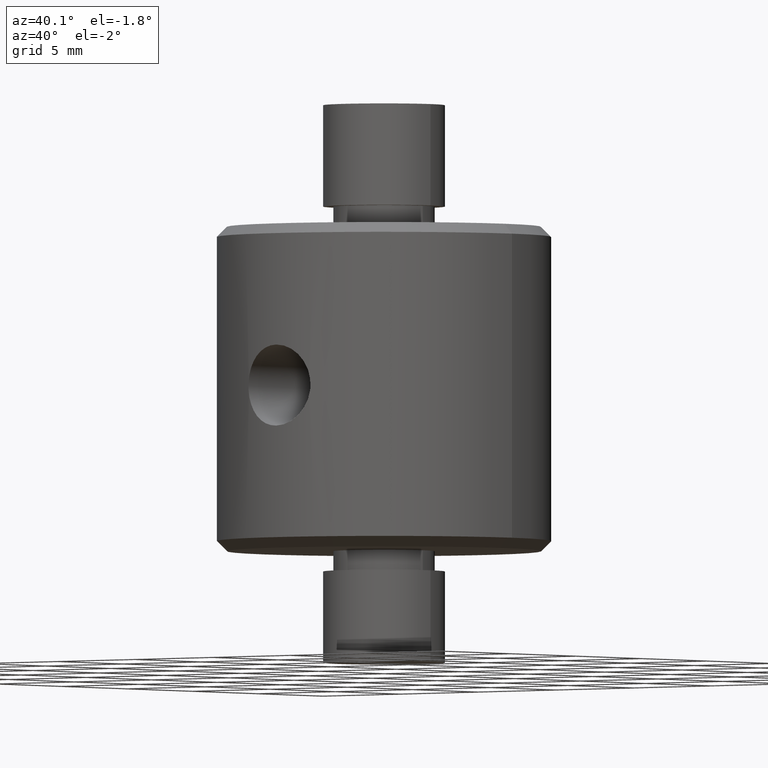
[diagram: clean part render]
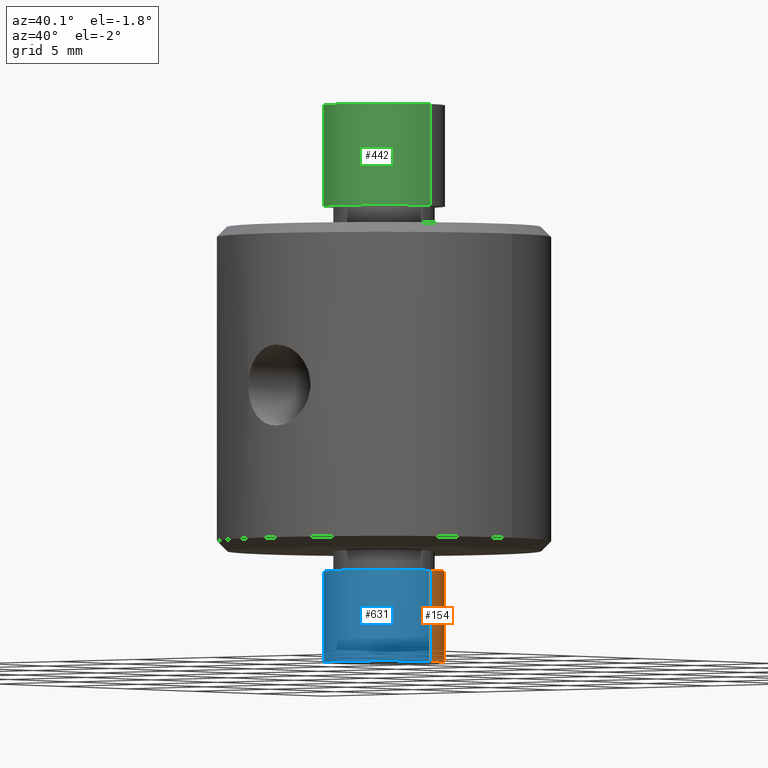
[diagram: same view with three faces highlighted in distinct colors, each labeled with its STEP entity id]
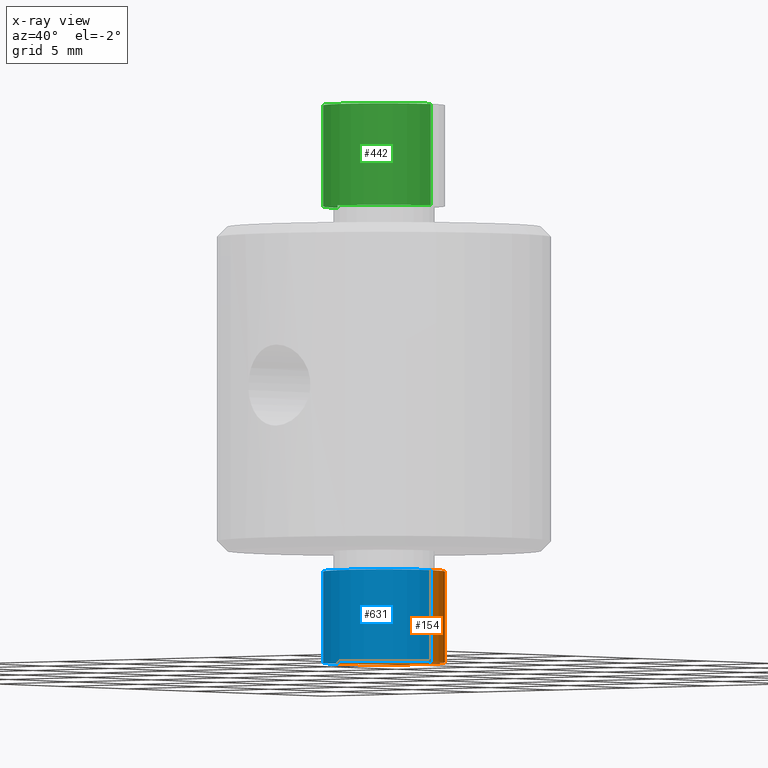
[diagram: x-ray of the same camera — body ghosted, the three highlighted faces saturated]
A machine part, auxiliary view with three faces highlighted in distinct colors.
The next image is the same camera in x-ray (body ghosted, the three faces saturated) — at least one of them is partly hidden behind the body in this view.
Their STEP definitions:

[orange] entity #154 — the highlighted cylindrical surface (partial cylindrical patch) has radius 3 mm, axis along (-0, -0, -1).
#9 = AXIS2_PLACEMENT_3D ( 'NONE', #415, #113, #177 ) ;
#40 = FACE_OUTER_BOUND ( 'NONE', #416, .T. ) ;
#65 = DIRECTION ( 'NONE',  ( -0.0000000000000000000, -0.0000000000000000000, -1.000000000000000000 ) ) ;
#69 = EDGE_CURVE ( 'NONE', #440, #360, #85, .T. ) ;
#71 = DIRECTION ( 'NONE',  ( -0.0000000000000000000, -0.0000000000000000000, -1.000000000000000000 ) ) ;
#85 = CIRCLE ( 'NONE', #9, 3.000000000000000400 ) ;
#87 = ORIENTED_EDGE ( 'NONE', *, *, #69, .F. ) ;
#113 = DIRECTION ( 'NONE',  ( -0.0000000000000000000, -0.0000000000000000000, 1.000000000000000000 ) ) ;
#118 = CARTESIAN_POINT ( 'NONE',  ( 3.000000000000000400, 3.673940397442060400E-016, -9.000000000000001800 ) ) ;
#121 = EDGE_CURVE ( 'NONE', #360, #195, #753, .T. ) ;
#154 = ADVANCED_FACE ( 'NONE', ( #40 ), #681, .T. ) ;
#177 = DIRECTION ( 'NONE',  ( -1.000000000000000000, 0.0000000000000000000, 0.0000000000000000000 ) ) ;
#186 = AXIS2_PLACEMENT_3D ( 'NONE', #492, #71, #610 ) ;
#193 = ORIENTED_EDGE ( 'NONE', *, *, #121, .F. ) ;
#195 = VERTEX_POINT ( 'NONE', #720 ) ;
#201 = DIRECTION ( 'NONE',  ( -0.0000000000000000000, -0.0000000000000000000, -1.000000000000000000 ) ) ;
#251 = CARTESIAN_POINT ( 'NONE',  ( 3.000000000000000400, 3.673940397442060400E-016, -8.000000000000000000 ) ) ;
#278 = EDGE_CURVE ( 'NONE', #440, #500, #358, .T. ) ;
#289 = DIRECTION ( 'NONE',  ( 0.0000000000000000000, 0.0000000000000000000, -1.000000000000000000 ) ) ;
#328 = CIRCLE ( 'NONE', #483, 3.000000000000000400 ) ;
#358 = LINE ( 'NONE', #251, #762 ) ;
#360 = VERTEX_POINT ( 'NONE', #737 ) ;
#403 = CARTESIAN_POINT ( 'NONE',  ( 3.000000000000000400, 3.673940397442060400E-016, -13.50000000000000000 ) ) ;
#415 = CARTESIAN_POINT ( 'NONE',  ( 0.0000000000000000000, 0.0000000000000000000, -9.000000000000001800 ) ) ;
#416 = EDGE_LOOP ( 'NONE', ( #87, #482, #541, #193 ) ) ;
#440 = VERTEX_POINT ( 'NONE', #118 ) ;
#482 = ORIENTED_EDGE ( 'NONE', *, *, #278, .T. ) ;
#483 = AXIS2_PLACEMENT_3D ( 'NONE', #648, #289, #484 ) ;
#484 = DIRECTION ( 'NONE',  ( -1.000000000000000000, 0.0000000000000000000, 0.0000000000000000000 ) ) ;
#492 = CARTESIAN_POINT ( 'NONE',  ( 0.0000000000000000000, 0.0000000000000000000, -8.000000000000000000 ) ) ;
#500 = VERTEX_POINT ( 'NONE', #403 ) ;
#512 = EDGE_CURVE ( 'NONE', #195, #500, #328, .T. ) ;
#541 = ORIENTED_EDGE ( 'NONE', *, *, #512, .F. ) ;
#545 = CARTESIAN_POINT ( 'NONE',  ( -3.000000000000000400, 0.0000000000000000000, -8.000000000000000000 ) ) ;
#553 = VECTOR ( 'NONE', #201, 1000.000000000000000 ) ;
#610 = DIRECTION ( 'NONE',  ( -1.000000000000000000, 0.0000000000000000000, 0.0000000000000000000 ) ) ;
#648 = CARTESIAN_POINT ( 'NONE',  ( 0.0000000000000000000, 0.0000000000000000000, -13.50000000000000000 ) ) ;
#681 = CYLINDRICAL_SURFACE ( 'NONE', #186, 3.000000000000000400 ) ;
#720 = CARTESIAN_POINT ( 'NONE',  ( -3.000000000000000400, 0.0000000000000000000, -13.50000000000000000 ) ) ;
#737 = CARTESIAN_POINT ( 'NONE',  ( -3.000000000000000400, 0.0000000000000000000, -9.000000000000001800 ) ) ;
#753 = LINE ( 'NONE', #545, #553 ) ;
#762 = VECTOR ( 'NONE', #65, 1000.000000000000000 ) ;

[blue] entity #631 — the highlighted cylindrical surface (partial cylindrical patch) has radius 3 mm, axis along (-0, -0, -1).
#6 = AXIS2_PLACEMENT_3D ( 'NONE', #533, #10, #188 ) ;
#10 = DIRECTION ( 'NONE',  ( 0.0000000000000000000, 0.0000000000000000000, -1.000000000000000000 ) ) ;
#13 = ORIENTED_EDGE ( 'NONE', *, *, #160, .F. ) ;
#65 = DIRECTION ( 'NONE',  ( -0.0000000000000000000, -0.0000000000000000000, -1.000000000000000000 ) ) ;
#118 = CARTESIAN_POINT ( 'NONE',  ( 3.000000000000000400, 3.673940397442060400E-016, -9.000000000000001800 ) ) ;
#119 = ORIENTED_EDGE ( 'NONE', *, *, #624, .F. ) ;
#121 = EDGE_CURVE ( 'NONE', #360, #195, #753, .T. ) ;
#134 = DIRECTION ( 'NONE',  ( -0.0000000000000000000, -0.0000000000000000000, -1.000000000000000000 ) ) ;
#160 = EDGE_CURVE ( 'NONE', #360, #440, #162, .T. ) ;
#162 = CIRCLE ( 'NONE', #413, 3.000000000000000400 ) ;
#188 = DIRECTION ( 'NONE',  ( -1.000000000000000000, 0.0000000000000000000, 0.0000000000000000000 ) ) ;
#195 = VERTEX_POINT ( 'NONE', #720 ) ;
#201 = DIRECTION ( 'NONE',  ( -0.0000000000000000000, -0.0000000000000000000, -1.000000000000000000 ) ) ;
#251 = CARTESIAN_POINT ( 'NONE',  ( 3.000000000000000400, 3.673940397442060400E-016, -8.000000000000000000 ) ) ;
#278 = EDGE_CURVE ( 'NONE', #440, #500, #358, .T. ) ;
#302 = FACE_OUTER_BOUND ( 'NONE', #401, .T. ) ;
#358 = LINE ( 'NONE', #251, #762 ) ;
#360 = VERTEX_POINT ( 'NONE', #737 ) ;
#377 = AXIS2_PLACEMENT_3D ( 'NONE', #418, #134, #540 ) ;
#401 = EDGE_LOOP ( 'NONE', ( #543, #13, #592, #119 ) ) ;
#403 = CARTESIAN_POINT ( 'NONE',  ( 3.000000000000000400, 3.673940397442060400E-016, -13.50000000000000000 ) ) ;
#413 = AXIS2_PLACEMENT_3D ( 'NONE', #605, #723, #496 ) ;
#418 = CARTESIAN_POINT ( 'NONE',  ( 0.0000000000000000000, 0.0000000000000000000, -8.000000000000000000 ) ) ;
#440 = VERTEX_POINT ( 'NONE', #118 ) ;
#496 = DIRECTION ( 'NONE',  ( -1.000000000000000000, 0.0000000000000000000, 0.0000000000000000000 ) ) ;
#500 = VERTEX_POINT ( 'NONE', #403 ) ;
#505 = CYLINDRICAL_SURFACE ( 'NONE', #377, 3.000000000000000400 ) ;
#533 = CARTESIAN_POINT ( 'NONE',  ( 0.0000000000000000000, 0.0000000000000000000, -13.50000000000000000 ) ) ;
#540 = DIRECTION ( 'NONE',  ( -1.000000000000000000, 0.0000000000000000000, 0.0000000000000000000 ) ) ;
#543 = ORIENTED_EDGE ( 'NONE', *, *, #278, .F. ) ;
#545 = CARTESIAN_POINT ( 'NONE',  ( -3.000000000000000400, 0.0000000000000000000, -8.000000000000000000 ) ) ;
#553 = VECTOR ( 'NONE', #201, 1000.000000000000000 ) ;
#592 = ORIENTED_EDGE ( 'NONE', *, *, #121, .T. ) ;
#605 = CARTESIAN_POINT ( 'NONE',  ( 0.0000000000000000000, 0.0000000000000000000, -9.000000000000001800 ) ) ;
#624 = EDGE_CURVE ( 'NONE', #500, #195, #751, .T. ) ;
#631 = ADVANCED_FACE ( 'NONE', ( #302 ), #505, .T. ) ;
#720 = CARTESIAN_POINT ( 'NONE',  ( -3.000000000000000400, 0.0000000000000000000, -13.50000000000000000 ) ) ;
#723 = DIRECTION ( 'NONE',  ( -0.0000000000000000000, -0.0000000000000000000, 1.000000000000000000 ) ) ;
#737 = CARTESIAN_POINT ( 'NONE',  ( -3.000000000000000400, 0.0000000000000000000, -9.000000000000001800 ) ) ;
#751 = CIRCLE ( 'NONE', #6, 3.000000000000000400 ) ;
#753 = LINE ( 'NONE', #545, #553 ) ;
#762 = VECTOR ( 'NONE', #65, 1000.000000000000000 ) ;

[green] entity #442 — the highlighted cylindrical surface (partial cylindrical patch) has radius 3 mm, axis along (-0, -0, 1).
#45 = DIRECTION ( 'NONE',  ( -0.0000000000000000000, -0.0000000000000000000, 1.000000000000000000 ) ) ;
#55 = EDGE_CURVE ( 'NONE', #274, #260, #146, .T. ) ;
#60 = AXIS2_PLACEMENT_3D ( 'NONE', #158, #88, #384 ) ;
#84 = CARTESIAN_POINT ( 'NONE',  ( 3.000000000000000400, 0.0000000000000000000, 9.000000000000001800 ) ) ;
#88 = DIRECTION ( 'NONE',  ( 0.0000000000000000000, 0.0000000000000000000, 1.000000000000000000 ) ) ;
#108 = ORIENTED_EDGE ( 'NONE', *, *, #55, .F. ) ;
#114 = EDGE_CURVE ( 'NONE', #260, #608, #532, .T. ) ;
#127 = CARTESIAN_POINT ( 'NONE',  ( 0.0000000000000000000, 0.0000000000000000000, 9.000000000000001800 ) ) ;
#130 = DIRECTION ( 'NONE',  ( -0.0000000000000000000, -0.0000000000000000000, 1.000000000000000000 ) ) ;
#135 = CARTESIAN_POINT ( 'NONE',  ( -3.000000000000000400, 3.673940397442060400E-016, 8.000000000000000000 ) ) ;
#137 = DIRECTION ( 'NONE',  ( -0.0000000000000000000, -0.0000000000000000000, 1.000000000000000000 ) ) ;
#146 = CIRCLE ( 'NONE', #357, 3.000000000000000400 ) ;
#158 = CARTESIAN_POINT ( 'NONE',  ( 0.0000000000000000000, 0.0000000000000000000, 14.00000000000000000 ) ) ;
#164 = VERTEX_POINT ( 'NONE', #489 ) ;
#189 = DIRECTION ( 'NONE',  ( 1.000000000000000000, 0.0000000000000000000, 0.0000000000000000000 ) ) ;
#211 = LINE ( 'NONE', #544, #448 ) ;
#212 = FACE_OUTER_BOUND ( 'NONE', #271, .T. ) ;
#229 = DIRECTION ( 'NONE',  ( -0.0000000000000000000, -0.0000000000000000000, -1.000000000000000000 ) ) ;
#260 = VERTEX_POINT ( 'NONE', #552 ) ;
#271 = EDGE_LOOP ( 'NONE', ( #636, #108, #617, #683 ) ) ;
#274 = VERTEX_POINT ( 'NONE', #84 ) ;
#336 = AXIS2_PLACEMENT_3D ( 'NONE', #639, #45, #412 ) ;
#338 = CIRCLE ( 'NONE', #60, 3.000000000000000400 ) ;
#357 = AXIS2_PLACEMENT_3D ( 'NONE', #127, #229, #189 ) ;
#384 = DIRECTION ( 'NONE',  ( 1.000000000000000000, 0.0000000000000000000, 0.0000000000000000000 ) ) ;
#412 = DIRECTION ( 'NONE',  ( 1.000000000000000000, 0.0000000000000000000, 0.0000000000000000000 ) ) ;
#442 = ADVANCED_FACE ( 'NONE', ( #212 ), #551, .T. ) ;
#448 = VECTOR ( 'NONE', #130, 1000.000000000000000 ) ;
#489 = CARTESIAN_POINT ( 'NONE',  ( 3.000000000000000400, 0.0000000000000000000, 14.00000000000000000 ) ) ;
#498 = VECTOR ( 'NONE', #137, 1000.000000000000000 ) ;
#532 = LINE ( 'NONE', #135, #498 ) ;
#544 = CARTESIAN_POINT ( 'NONE',  ( 3.000000000000000400, 0.0000000000000000000, 8.000000000000000000 ) ) ;
#551 = CYLINDRICAL_SURFACE ( 'NONE', #336, 3.000000000000000400 ) ;
#552 = CARTESIAN_POINT ( 'NONE',  ( -3.000000000000000400, 3.673940397442060400E-016, 9.000000000000001800 ) ) ;
#581 = EDGE_CURVE ( 'NONE', #274, #164, #211, .T. ) ;
#608 = VERTEX_POINT ( 'NONE', #718 ) ;
#617 = ORIENTED_EDGE ( 'NONE', *, *, #581, .T. ) ;
#636 = ORIENTED_EDGE ( 'NONE', *, *, #114, .F. ) ;
#639 = CARTESIAN_POINT ( 'NONE',  ( 0.0000000000000000000, 0.0000000000000000000, 8.000000000000000000 ) ) ;
#683 = ORIENTED_EDGE ( 'NONE', *, *, #707, .F. ) ;
#707 = EDGE_CURVE ( 'NONE', #608, #164, #338, .T. ) ;
#718 = CARTESIAN_POINT ( 'NONE',  ( -3.000000000000000400, 3.673940397442060400E-016, 14.00000000000000000 ) ) ;